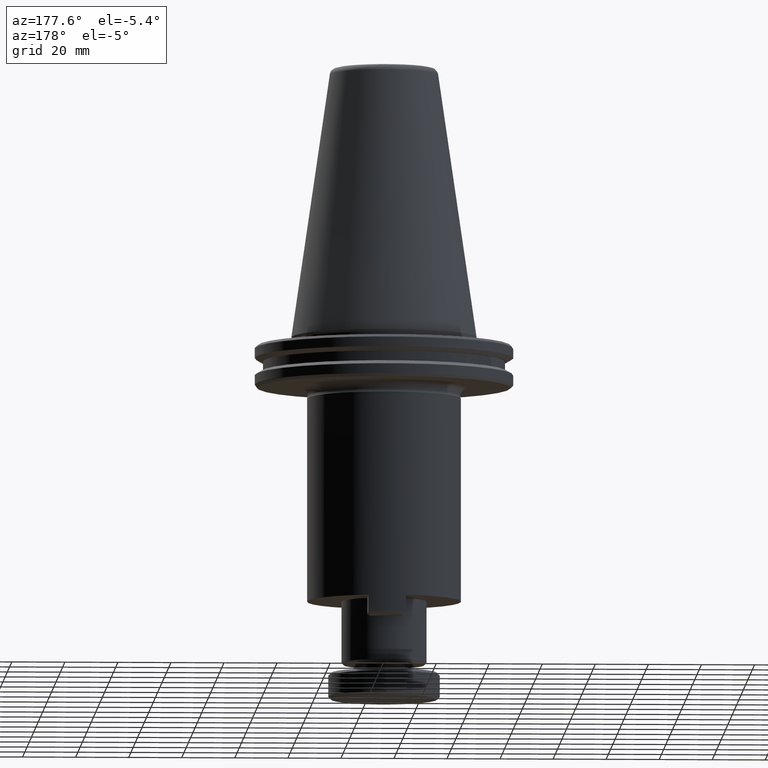
[diagram: clean part render]
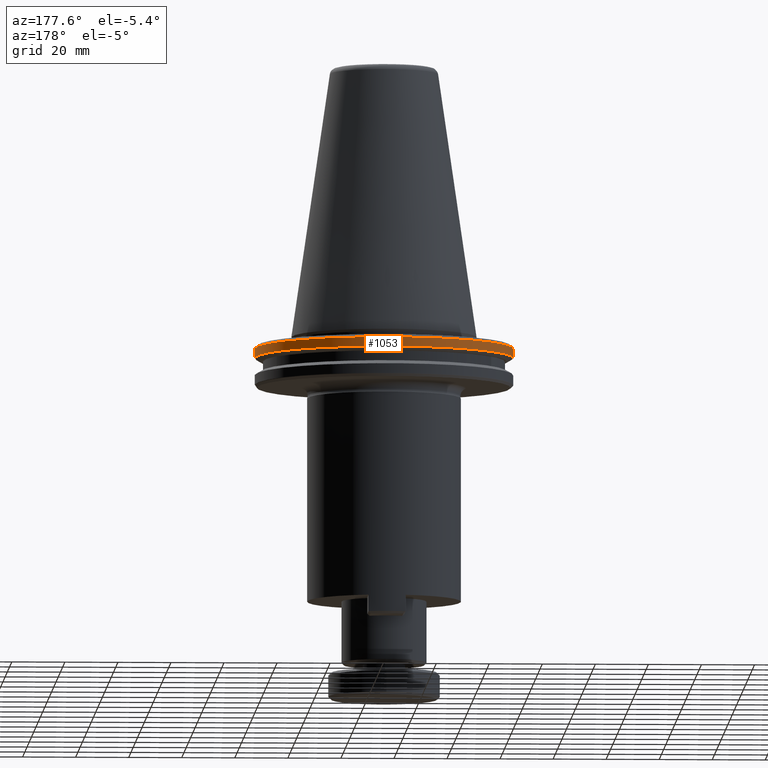
[diagram: same view with one face highlighted and labeled with its STEP entity id]
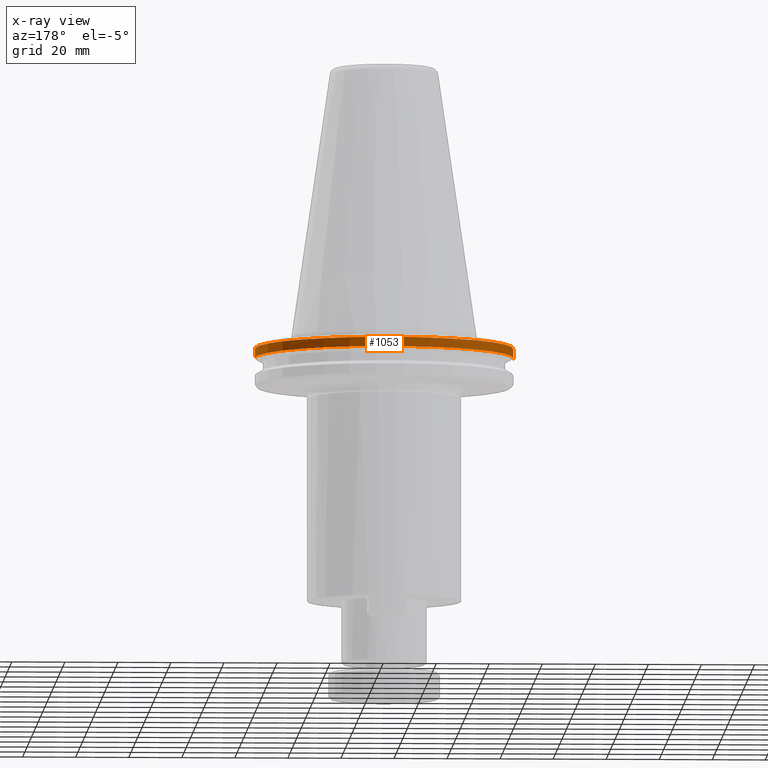
[diagram: x-ray of the same camera — body ghosted, the highlighted face saturated]
A machine part, auxiliary view. The second image highlights one B-rep face of the part: STEP entity #1053.
The next image is the same camera in x-ray: the body ghosted, the highlighted face saturated — about 0% of this face is hidden behind the body in this view.
In plain terms, the highlighted cylindrical surface (partial cylindrical patch) has radius 48.75 mm, axis along (-0, -0, 1).
Its self-contained STEP definition (entity closure, byte-faithful):
#140 = CIRCLE ( 'NONE', #252, 48.74999999999998600 ) ;
#159 = DIRECTION ( 'NONE',  ( 1.000000000000000000, 0.0000000000000000000, 0.0000000000000000000 ) ) ;
#233 = DIRECTION ( 'NONE',  ( 1.000000000000000000, 0.0000000000000000000, 0.0000000000000000000 ) ) ;
#252 = AXIS2_PLACEMENT_3D ( 'NONE', #750, #1998, #233 ) ;
#315 = VECTOR ( 'NONE', #1933, 1000.000000000000000 ) ;
#344 = LINE ( 'NONE', #1815, #315 ) ;
#389 = CARTESIAN_POINT ( 'NONE',  ( 91.78900745422477300, 111.8872747687010000, 93.63381735169856800 ) ) ;
#517 = DIRECTION ( 'NONE',  ( -0.0000000000000000000, -0.0000000000000000000, 1.000000000000000000 ) ) ;
#526 = CARTESIAN_POINT ( 'NONE',  ( 43.03900745430997400, 111.8872747687010000, 93.63381735169856800 ) ) ;
#585 = VERTEX_POINT ( 'NONE', #883 ) ;
#709 = CARTESIAN_POINT ( 'NONE',  ( 140.5390074541821800, 111.8872747687010000, 199.7495027782804000 ) ) ;
#742 = EDGE_CURVE ( 'NONE', #1391, #2528, #140, .T. ) ;
#750 = CARTESIAN_POINT ( 'NONE',  ( 91.78900745422477300, 111.8872747687010000, 90.14709804367184600 ) ) ;
#852 = CARTESIAN_POINT ( 'NONE',  ( 43.03900745422478700, 111.8872747687010000, 90.14709804367184600 ) ) ;
#883 = CARTESIAN_POINT ( 'NONE',  ( 140.5390074541395800, 111.8872747687010000, 93.63381735169856800 ) ) ;
#927 = VERTEX_POINT ( 'NONE', #526 ) ;
#942 = CARTESIAN_POINT ( 'NONE',  ( 91.78900745422477300, 111.8872747687010000, 199.7495027782804000 ) ) ;
#1053 = ADVANCED_FACE ( 'NONE', ( #2617 ), #2585, .T. ) ;
#1206 = AXIS2_PLACEMENT_3D ( 'NONE', #942, #517, #2404 ) ;
#1391 = VERTEX_POINT ( 'NONE', #2573 ) ;
#1423 = EDGE_CURVE ( 'NONE', #1391, #585, #2169, .T. ) ;
#1474 = ORIENTED_EDGE ( 'NONE', *, *, #742, .T. ) ;
#1492 = ORIENTED_EDGE ( 'NONE', *, *, #1423, .F. ) ;
#1531 = CIRCLE ( 'NONE', #1936, 48.74999999991480600 ) ;
#1815 = CARTESIAN_POINT ( 'NONE',  ( 43.03900745426737700, 111.8872747687010000, 199.7495027782804000 ) ) ;
#1932 = EDGE_CURVE ( 'NONE', #585, #927, #1531, .T. ) ;
#1933 = DIRECTION ( 'NONE',  ( -0.0000000000000000000, -0.0000000000000000000, 1.000000000000000000 ) ) ;
#1936 = AXIS2_PLACEMENT_3D ( 'NONE', #389, #2678, #159 ) ;
#1961 = EDGE_LOOP ( 'NONE', ( #1474, #2571, #2325, #1492 ) ) ;
#1998 = DIRECTION ( 'NONE',  ( -0.0000000000000000000, -0.0000000000000000000, 1.000000000000000000 ) ) ;
#2162 = VECTOR ( 'NONE', #2644, 1000.000000000000000 ) ;
#2169 = LINE ( 'NONE', #709, #2162 ) ;
#2325 = ORIENTED_EDGE ( 'NONE', *, *, #1932, .F. ) ;
#2404 = DIRECTION ( 'NONE',  ( 1.000000000000000000, 0.0000000000000000000, 0.0000000000000000000 ) ) ;
#2528 = VERTEX_POINT ( 'NONE', #852 ) ;
#2571 = ORIENTED_EDGE ( 'NONE', *, *, #2658, .T. ) ;
#2573 = CARTESIAN_POINT ( 'NONE',  ( 140.5390074542247600, 111.8872747687010000, 90.14709804367184600 ) ) ;
#2585 = CYLINDRICAL_SURFACE ( 'NONE', #1206, 48.74999999995741000 ) ;
#2617 = FACE_OUTER_BOUND ( 'NONE', #1961, .T. ) ;
#2644 = DIRECTION ( 'NONE',  ( -0.0000000000000000000, -0.0000000000000000000, 1.000000000000000000 ) ) ;
#2658 = EDGE_CURVE ( 'NONE', #2528, #927, #344, .T. ) ;
#2678 = DIRECTION ( 'NONE',  ( -0.0000000000000000000, -0.0000000000000000000, 1.000000000000000000 ) ) ;